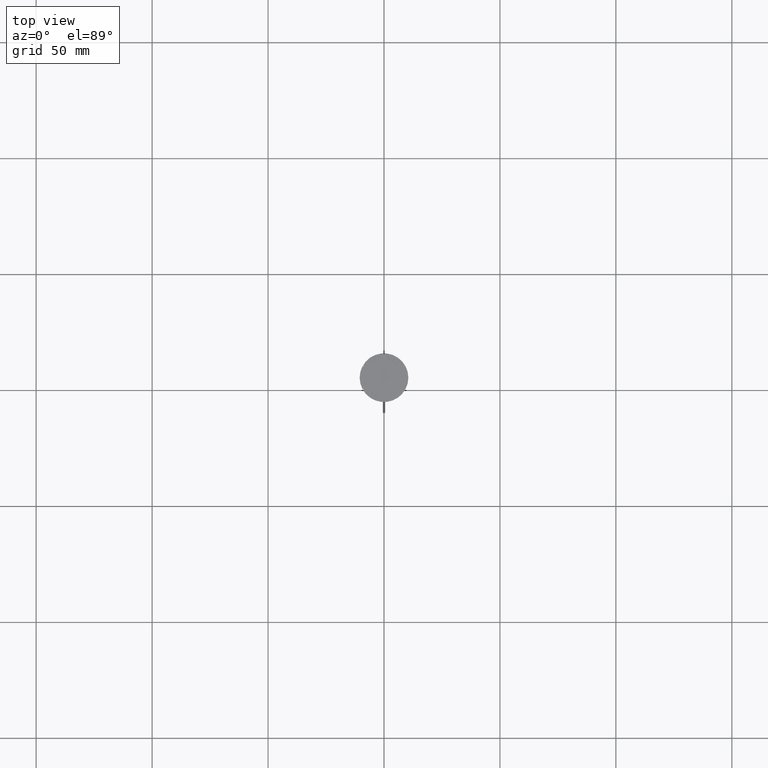
[diagram: clean part render]
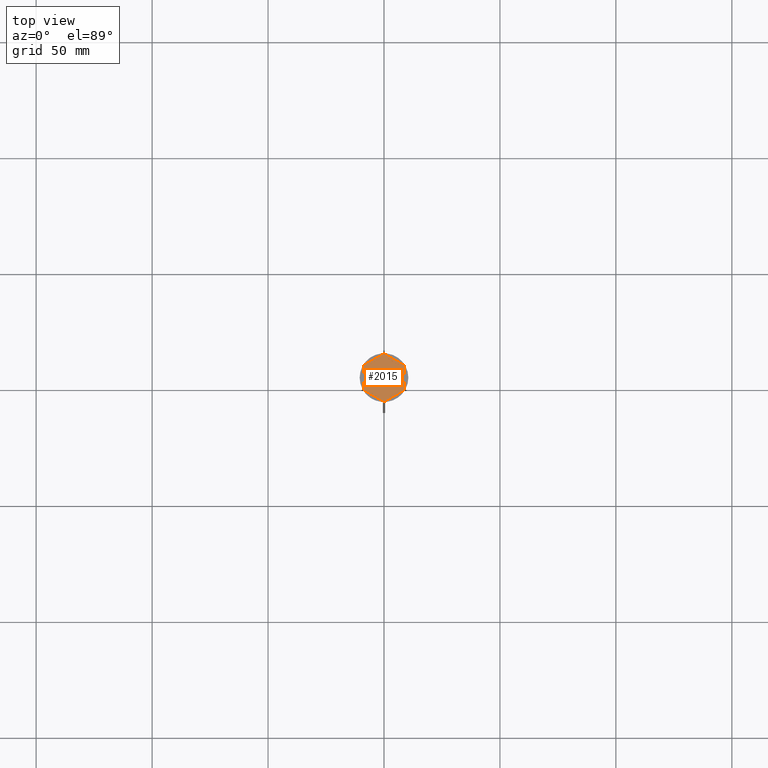
[diagram: same view with one face highlighted and labeled with its STEP entity id]
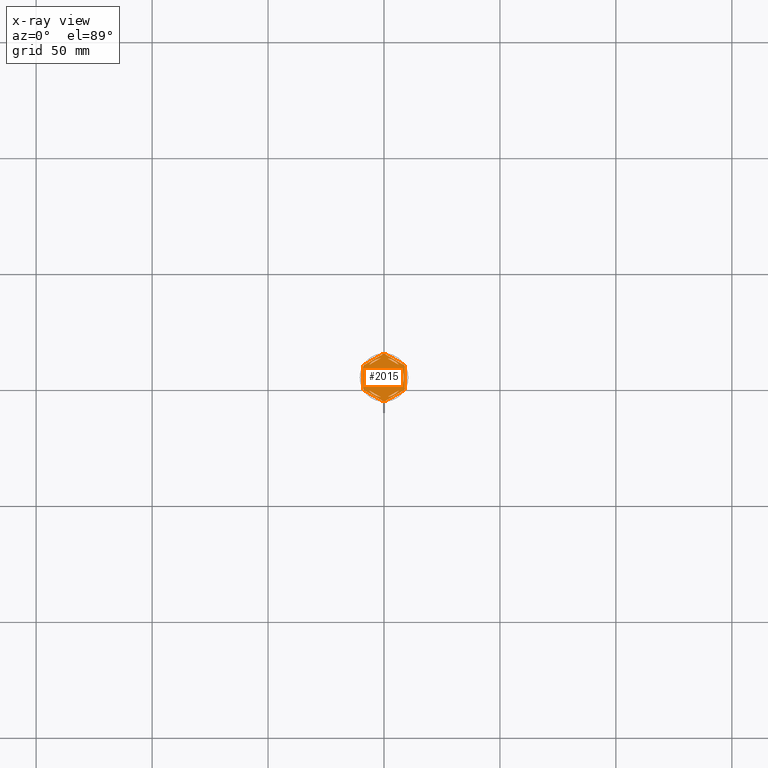
[diagram: x-ray of the same camera — body ghosted, the highlighted face saturated]
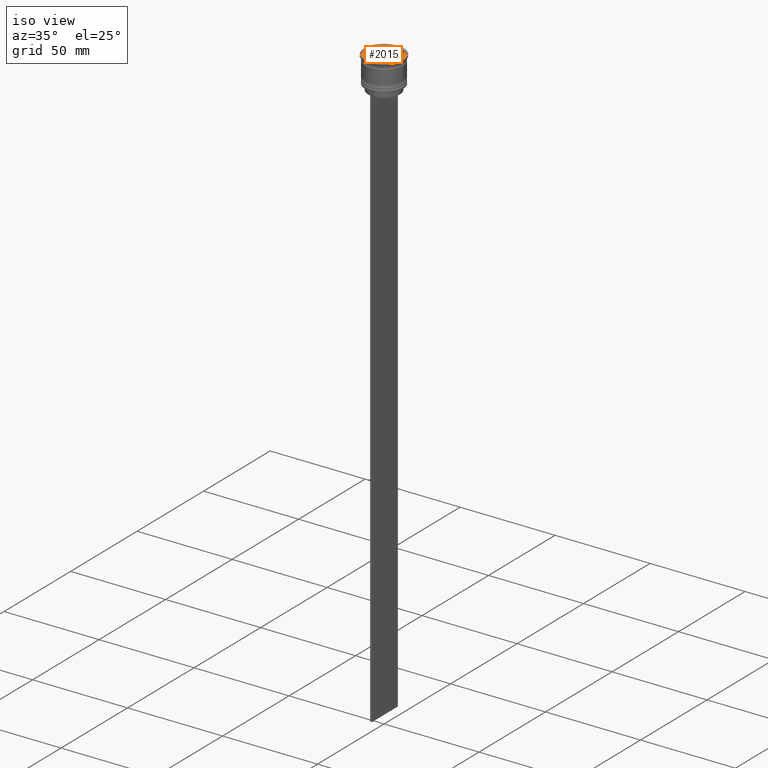
[diagram: same view with one face highlighted and labeled with its STEP entity id]
A machine part, top view. The second image highlights one B-rep face of the part: STEP entity #2015.
The next image is the same camera in x-ray: the body ghosted, the highlighted face saturated — about 0% of this face is hidden behind the body in this view.
A second angle (iso view) of the same face is appended — the face is thin or edge-on in the first view.
In plain terms, the highlighted planar face has unit normal (0, 0, 1).
Its self-contained STEP definition (entity closure, byte-faithful):
#14 = CARTESIAN_POINT ( 'NONE',  ( -1.512531407233448366, -8.364343891910017703, -1.000000000000000888 ) ) ;
#55 = EDGE_CURVE ( 'NONE', #1963, #1712, #1995, .T. ) ;
#57 = AXIS2_PLACEMENT_3D ( 'NONE', #260, #405, #415 ) ;
#65 = VERTEX_POINT ( 'NONE', #609 ) ;
#66 = CARTESIAN_POINT ( 'NONE',  ( 0.000000000000000000, 0.000000000000000000, -1.000000000000000000 ) ) ;
#80 = VERTEX_POINT ( 'NONE', #836 ) ;
#84 = CARTESIAN_POINT ( 'NONE',  ( 8.656921938165297092, 5.394228634059953897, -1.000000000000000000 ) ) ;
#87 = DIRECTION ( 'NONE',  ( 1.000000000000000000, 8.881784197001252323E-16, 0.000000000000000000 ) ) ;
#96 = DIRECTION ( 'NONE',  ( -0.8660254037844385966, 0.4999999999999999445, 0.000000000000000000 ) ) ;
#101 = CIRCLE ( 'NONE', #1263, 8.500000000000000000 ) ;
#103 = EDGE_LOOP ( 'NONE', ( #1173, #1193 ) ) ;
#133 = CARTESIAN_POINT ( 'NONE',  ( 0.000000000000000000, 0.000000000000000000, -1.000000000000000000 ) ) ;
#134 = CIRCLE ( 'NONE', #1461, 10.19999999999999574 ) ;
#151 = CARTESIAN_POINT ( 'NONE',  ( 6.487468592766552078, 5.492062568641001619, -1.000000000000000888 ) ) ;
#164 = EDGE_LOOP ( 'NONE', ( #1160, #2551 ) ) ;
#166 = VERTEX_POINT ( 'NONE', #277 ) ;
#172 = DIRECTION ( 'NONE',  ( 0.000000000000000000, 0.000000000000000000, 1.000000000000000000 ) ) ;
#177 = VECTOR ( 'NONE', #1108, 1000.000000000000000 ) ;
#200 = EDGE_CURVE ( 'NONE', #881, #2056, #1076, .T. ) ;
#211 = DIRECTION ( 'NONE',  ( 1.000000000000000000, 0.000000000000000000, 0.000000000000000000 ) ) ;
#214 = CARTESIAN_POINT ( 'NONE',  ( -8.673617379884035472E-16, -9.237604307034013473, -1.000000000000000888 ) ) ;
#218 = LINE ( 'NONE', #249, #2189 ) ;
#226 = ORIENTED_EDGE ( 'NONE', *, *, #531, .F. ) ;
#246 = CARTESIAN_POINT ( 'NONE',  ( -0.3430780618347059052, 10.19422863405994306, -1.000000000000000000 ) ) ;
#248 = CARTESIAN_POINT ( 'NONE',  ( 8.000000000000000000, 4.618802153517006737, -1.000000000000000888 ) ) ;
#249 = CARTESIAN_POINT ( 'NONE',  ( 8.673617379884035472E-16, 9.237604307034013473, -1.000000000000000888 ) ) ;
#250 = CIRCLE ( 'NONE', #2315, 10.19999999999999574 ) ;
#260 = CARTESIAN_POINT ( 'NONE',  ( 0.000000000000000000, 0.000000000000000000, -1.000000000000000000 ) ) ;
#269 = VECTOR ( 'NONE', #1272, 1000.000000000000000 ) ;
#273 = FACE_BOUND ( 'NONE', #1168, .T. ) ;
#277 = CARTESIAN_POINT ( 'NONE',  ( -8.500000000000000000, 0.000000000000000000, -1.000000000000000000 ) ) ;
#319 = CARTESIAN_POINT ( 'NONE',  ( 2.607697573705103160E-15, -10.39230484541326405, -1.000000000000000000 ) ) ;
#320 = EDGE_LOOP ( 'NONE', ( #2320, #1929, #1031, #712, #421, #1575, #1579, #1033, #1496, #2574, #1687, #1178 ) ) ;
#324 = FACE_BOUND ( 'NONE', #1828, .T. ) ;
#347 = DIRECTION ( 'NONE',  ( 1.000000000000000000, 0.000000000000000000, 0.000000000000000000 ) ) ;
#360 = FACE_BOUND ( 'NONE', #164, .T. ) ;
#361 = EDGE_CURVE ( 'NONE', #704, #1621, #2109, .T. ) ;
#363 = CARTESIAN_POINT ( 'NONE',  ( 0.000000000000000000, 0.000000000000000000, -1.000000000000000000 ) ) ;
#397 = CARTESIAN_POINT ( 'NONE',  ( -9.000000000000001776, -4.799999999999988276, -1.000000000000000000 ) ) ;
#405 = DIRECTION ( 'NONE',  ( 0.000000000000000000, 0.000000000000000000, 1.000000000000000000 ) ) ;
#415 = DIRECTION ( 'NONE',  ( 1.000000000000000000, 0.000000000000000000, 0.000000000000000000 ) ) ;
#421 = ORIENTED_EDGE ( 'NONE', *, *, #1092, .T. ) ;
#427 = DIRECTION ( 'NONE',  ( 1.000000000000000000, 0.000000000000000000, 0.000000000000000000 ) ) ;
#441 = LINE ( 'NONE', #2202, #2156 ) ;
#472 = VERTEX_POINT ( 'NONE', #983 ) ;
#478 = CARTESIAN_POINT ( 'NONE',  ( 8.656921938165297092, -5.394228634059953009, -1.000000000000000000 ) ) ;
#480 = CARTESIAN_POINT ( 'NONE',  ( -8.000000000000000000, 4.618802153517004072, -1.000000000000000888 ) ) ;
#482 = VECTOR ( 'NONE', #1368, 1000.000000000000227 ) ;
#505 = LINE ( 'NONE', #319, #177 ) ;
#510 = VECTOR ( 'NONE', #1036, 1000.000000000000114 ) ;
#524 = VERTEX_POINT ( 'NONE', #811 ) ;
#525 = DIRECTION ( 'NONE',  ( -0.000000000000000000, -0.000000000000000000, -1.000000000000000000 ) ) ;
#531 = EDGE_CURVE ( 'NONE', #1712, #1963, #1765, .T. ) ;
#533 = CARTESIAN_POINT ( 'NONE',  ( 8.000000000000000000, 2.872281323269014752, -1.000000000000000888 ) ) ;
#536 = DIRECTION ( 'NONE',  ( 1.000000000000000000, 0.000000000000000000, 0.000000000000000000 ) ) ;
#545 = LINE ( 'NONE', #1833, #2519 ) ;
#566 = EDGE_CURVE ( 'NONE', #524, #1560, #1617, .T. ) ;
#569 = EDGE_CURVE ( 'NONE', #1560, #524, #1063, .T. ) ;
#585 = CARTESIAN_POINT ( 'NONE',  ( -0.3430780618347024080, -10.19422863405994306, -1.000000000000000000 ) ) ;
#609 = CARTESIAN_POINT ( 'NONE',  ( 9.000000000000001776, 4.799999999999988276, -1.000000000000000000 ) ) ;
#628 = DIRECTION ( 'NONE',  ( 1.000000000000000000, 0.000000000000000000, 0.000000000000000000 ) ) ;
#643 = VERTEX_POINT ( 'NONE', #1457 ) ;
#647 = EDGE_CURVE ( 'NONE', #1738, #643, #545, .T. ) ;
#661 = LINE ( 'NONE', #2049, #2398 ) ;
#672 = CARTESIAN_POINT ( 'NONE',  ( 9.000000000000001776, -5.196152422706632024, -1.000000000000000000 ) ) ;
#683 = CARTESIAN_POINT ( 'NONE',  ( 1.512531407233448366, 8.364343891910017703, -1.000000000000000888 ) ) ;
#684 = AXIS2_PLACEMENT_3D ( 'NONE', #1728, #1121, #948 ) ;
#700 = DIRECTION ( 'NONE',  ( -0.000000000000000000, -0.000000000000000000, -1.000000000000000000 ) ) ;
#704 = VERTEX_POINT ( 'NONE', #84 ) ;
#712 = ORIENTED_EDGE ( 'NONE', *, *, #1137, .F. ) ;
#720 = CIRCLE ( 'NONE', #57, 8.500000000000000000 ) ;
#791 = VERTEX_POINT ( 'NONE', #2540 ) ;
#792 = CARTESIAN_POINT ( 'NONE',  ( -8.000000000000000000, -2.872281323269016085, -1.000000000000000888 ) ) ;
#793 = VERTEX_POINT ( 'NONE', #397 ) ;
#799 = CARTESIAN_POINT ( 'NONE',  ( -6.487468592766553854, 5.492062568640999842, -1.000000000000000888 ) ) ;
#811 = CARTESIAN_POINT ( 'NONE',  ( 6.487468592766547637, -5.492062568641006060, -1.000000000000000888 ) ) ;
#836 = CARTESIAN_POINT ( 'NONE',  ( 8.000000000000000000, -2.872281323269017417, -1.000000000000000888 ) ) ;
#837 = DIRECTION ( 'NONE',  ( -1.877893248421449036E-16, -1.000000000000000000, 0.000000000000000000 ) ) ;
#855 = DIRECTION ( 'NONE',  ( -0.000000000000000000, -0.000000000000000000, -1.000000000000000000 ) ) ;
#862 = VERTEX_POINT ( 'NONE', #1352 ) ;
#879 = LINE ( 'NONE', #1673, #1875 ) ;
#881 = VERTEX_POINT ( 'NONE', #792 ) ;
#902 = CARTESIAN_POINT ( 'NONE',  ( 0.000000000000000000, 0.000000000000000000, -1.000000000000000000 ) ) ;
#921 = PLANE ( 'NONE',  #1675 ) ;
#942 = EDGE_LOOP ( 'NONE', ( #1354, #1120 ) ) ;
#948 = DIRECTION ( 'NONE',  ( 1.000000000000000000, 0.000000000000000000, 0.000000000000000000 ) ) ;
#970 = CIRCLE ( 'NONE', #2426, 10.19999999999999574 ) ;
#981 = DIRECTION ( 'NONE',  ( 1.000000000000000000, 0.000000000000000000, -0.000000000000000000 ) ) ;
#983 = CARTESIAN_POINT ( 'NONE',  ( 9.000000000000001776, -4.799999999999988276, -1.000000000000000000 ) ) ;
#991 = CARTESIAN_POINT ( 'NONE',  ( -9.000000000000001776, 4.799999999999988276, -1.000000000000000000 ) ) ;
#995 = EDGE_CURVE ( 'NONE', #1480, #793, #134, .T. ) ;
#1031 = ORIENTED_EDGE ( 'NONE', *, *, #361, .T. ) ;
#1033 = ORIENTED_EDGE ( 'NONE', *, *, #995, .F. ) ;
#1036 = DIRECTION ( 'NONE',  ( 0.8660254037844385966, -0.4999999999999999445, 0.000000000000000000 ) ) ;
#1045 = DIRECTION ( 'NONE',  ( 0.8660254037844387076, -0.4999999999999997224, 0.000000000000000000 ) ) ;
#1063 = CIRCLE ( 'NONE', #1144, 8.500000000000000000 ) ;
#1076 = LINE ( 'NONE', #480, #269 ) ;
#1092 = EDGE_CURVE ( 'NONE', #1791, #1334, #879, .T. ) ;
#1102 = CIRCLE ( 'NONE', #684, 10.19999999999999574 ) ;
#1108 = DIRECTION ( 'NONE',  ( 0.8660254037844385966, 0.5000000000000001110, 0.000000000000000000 ) ) ;
#1120 = ORIENTED_EDGE ( 'NONE', *, *, #1373, .F. ) ;
#1121 = DIRECTION ( 'NONE',  ( -0.000000000000000000, -0.000000000000000000, -1.000000000000000000 ) ) ;
#1137 = EDGE_CURVE ( 'NONE', #1791, #1621, #1419, .T. ) ;
#1141 = EDGE_CURVE ( 'NONE', #862, #1905, #505, .T. ) ;
#1144 = AXIS2_PLACEMENT_3D ( 'NONE', #1230, #2201, #427 ) ;
#1160 = ORIENTED_EDGE ( 'NONE', *, *, #1785, .F. ) ;
#1168 = EDGE_LOOP ( 'NONE', ( #2171, #2475 ) ) ;
#1173 = ORIENTED_EDGE ( 'NONE', *, *, #569, .F. ) ;
#1175 = FACE_OUTER_BOUND ( 'NONE', #320, .T. ) ;
#1178 = ORIENTED_EDGE ( 'NONE', *, *, #1452, .F. ) ;
#1191 = DIRECTION ( 'NONE',  ( 0.000000000000000000, 0.000000000000000000, 1.000000000000000000 ) ) ;
#1193 = ORIENTED_EDGE ( 'NONE', *, *, #566, .F. ) ;
#1207 = CARTESIAN_POINT ( 'NONE',  ( -8.656921938165297092, 5.394228634059953009, -1.000000000000000000 ) ) ;
#1219 = DIRECTION ( 'NONE',  ( -0.000000000000000000, -0.000000000000000000, -1.000000000000000000 ) ) ;
#1230 = CARTESIAN_POINT ( 'NONE',  ( 0.000000000000000000, 0.000000000000000000, -1.000000000000000000 ) ) ;
#1246 = EDGE_CURVE ( 'NONE', #2528, #793, #2168, .T. ) ;
#1263 = AXIS2_PLACEMENT_3D ( 'NONE', #2108, #1519, #536 ) ;
#1265 = AXIS2_PLACEMENT_3D ( 'NONE', #2199, #2408, #628 ) ;
#1272 = DIRECTION ( 'NONE',  ( 0.000000000000000000, 1.000000000000000000, 0.000000000000000000 ) ) ;
#1297 = AXIS2_PLACEMENT_3D ( 'NONE', #2499, #700, #2284 ) ;
#1312 = DIRECTION ( 'NONE',  ( -0.8660254037844385966, -0.5000000000000001110, 0.000000000000000000 ) ) ;
#1317 = EDGE_CURVE ( 'NONE', #2528, #1334, #2532, .T. ) ;
#1320 = CARTESIAN_POINT ( 'NONE',  ( 9.000000000000001776, 5.196152422706632912, -1.000000000000000000 ) ) ;
#1334 = VERTEX_POINT ( 'NONE', #1207 ) ;
#1339 = VERTEX_POINT ( 'NONE', #799 ) ;
#1341 = CARTESIAN_POINT ( 'NONE',  ( -8.000000000000000000, 2.872281323269016085, -1.000000000000000888 ) ) ;
#1352 = CARTESIAN_POINT ( 'NONE',  ( 0.3430780618347059052, -10.19422863405994306, -1.000000000000000000 ) ) ;
#1354 = ORIENTED_EDGE ( 'NONE', *, *, #2233, .F. ) ;
#1368 = DIRECTION ( 'NONE',  ( -0.8660254037844385966, 0.5000000000000000000, 0.000000000000000000 ) ) ;
#1373 = EDGE_CURVE ( 'NONE', #1339, #791, #218, .T. ) ;
#1400 = DIRECTION ( 'NONE',  ( 0.8660254037844384856, 0.5000000000000003331, -0.000000000000000000 ) ) ;
#1408 = DIRECTION ( 'NONE',  ( -0.8660254037844387076, -0.4999999999999998335, 0.000000000000000000 ) ) ;
#1419 = CIRCLE ( 'NONE', #1297, 10.19999999999999574 ) ;
#1421 = EDGE_CURVE ( 'NONE', #2432, #80, #661, .T. ) ;
#1425 = CARTESIAN_POINT ( 'NONE',  ( 0.000000000000000000, 0.000000000000000000, -1.000000000000000000 ) ) ;
#1429 = CIRCLE ( 'NONE', #1265, 8.500000000000000000 ) ;
#1432 = VECTOR ( 'NONE', #1408, 1000.000000000000114 ) ;
#1452 = EDGE_CURVE ( 'NONE', #472, #1905, #250, .T. ) ;
#1457 = CARTESIAN_POINT ( 'NONE',  ( -6.487468592766552078, -5.492062568641001619, -1.000000000000000888 ) ) ;
#1460 = DIRECTION ( 'NONE',  ( 0.000000000000000000, 1.000000000000000000, 0.000000000000000000 ) ) ;
#1461 = AXIS2_PLACEMENT_3D ( 'NONE', #66, #855, #1651 ) ;
#1472 = AXIS2_PLACEMENT_3D ( 'NONE', #1592, #1191, #1980 ) ;
#1480 = VERTEX_POINT ( 'NONE', #2065 ) ;
#1486 = AXIS2_PLACEMENT_3D ( 'NONE', #363, #2121, #347 ) ;
#1496 = ORIENTED_EDGE ( 'NONE', *, *, #1737, .T. ) ;
#1505 = CARTESIAN_POINT ( 'NONE',  ( 0.000000000000000000, 0.000000000000000000, -1.000000000000000000 ) ) ;
#1519 = DIRECTION ( 'NONE',  ( 0.000000000000000000, 0.000000000000000000, 1.000000000000000000 ) ) ;
#1536 = ORIENTED_EDGE ( 'NONE', *, *, #55, .F. ) ;
#1537 = ORIENTED_EDGE ( 'NONE', *, *, #1676, .F. ) ;
#1546 = FACE_BOUND ( 'NONE', #2396, .T. ) ;
#1560 = VERTEX_POINT ( 'NONE', #2100 ) ;
#1575 = ORIENTED_EDGE ( 'NONE', *, *, #1317, .F. ) ;
#1578 = EDGE_CURVE ( 'NONE', #472, #65, #2110, .T. ) ;
#1579 = ORIENTED_EDGE ( 'NONE', *, *, #1246, .T. ) ;
#1592 = CARTESIAN_POINT ( 'NONE',  ( 0.000000000000000000, 0.000000000000000000, -1.000000000000000000 ) ) ;
#1615 = CIRCLE ( 'NONE', #1486, 8.500000000000000000 ) ;
#1617 = LINE ( 'NONE', #214, #1432 ) ;
#1621 = VERTEX_POINT ( 'NONE', #2562 ) ;
#1651 = DIRECTION ( 'NONE',  ( 1.000000000000000000, 0.000000000000000000, 0.000000000000000000 ) ) ;
#1673 = CARTESIAN_POINT ( 'NONE',  ( 0.000000000000000000, 10.39230484541326582, -1.000000000000000000 ) ) ;
#1675 = AXIS2_PLACEMENT_3D ( 'NONE', #1505, #1964, #981 ) ;
#1676 = EDGE_CURVE ( 'NONE', #166, #881, #1615, .T. ) ;
#1687 = ORIENTED_EDGE ( 'NONE', *, *, #1141, .T. ) ;
#1712 = VERTEX_POINT ( 'NONE', #151 ) ;
#1728 = CARTESIAN_POINT ( 'NONE',  ( 0.000000000000000000, 0.000000000000000000, -1.000000000000000000 ) ) ;
#1736 = VECTOR ( 'NONE', #1460, 1000.000000000000000 ) ;
#1737 = EDGE_CURVE ( 'NONE', #1480, #2176, #441, .T. ) ;
#1738 = VERTEX_POINT ( 'NONE', #14 ) ;
#1741 = ORIENTED_EDGE ( 'NONE', *, *, #200, .F. ) ;
#1765 = CIRCLE ( 'NONE', #1472, 8.500000000000000000 ) ;
#1785 = EDGE_CURVE ( 'NONE', #643, #1738, #720, .T. ) ;
#1791 = VERTEX_POINT ( 'NONE', #246 ) ;
#1812 = DIRECTION ( 'NONE',  ( 1.000000000000000000, 0.000000000000000000, 0.000000000000000000 ) ) ;
#1828 = EDGE_LOOP ( 'NONE', ( #226, #1536 ) ) ;
#1833 = CARTESIAN_POINT ( 'NONE',  ( -8.000000000000000000, -4.618802153517006737, -1.000000000000000888 ) ) ;
#1850 = FACE_BOUND ( 'NONE', #103, .T. ) ;
#1875 = VECTOR ( 'NONE', #1312, 1000.000000000000000 ) ;
#1877 = DIRECTION ( 'NONE',  ( -0.000000000000000000, -0.000000000000000000, -1.000000000000000000 ) ) ;
#1905 = VERTEX_POINT ( 'NONE', #478 ) ;
#1929 = ORIENTED_EDGE ( 'NONE', *, *, #2395, .F. ) ;
#1934 = AXIS2_PLACEMENT_3D ( 'NONE', #1425, #1219, #1812 ) ;
#1936 = FACE_BOUND ( 'NONE', #942, .T. ) ;
#1948 = CARTESIAN_POINT ( 'NONE',  ( 0.000000000000000000, 0.000000000000000000, -1.000000000000000000 ) ) ;
#1963 = VERTEX_POINT ( 'NONE', #683 ) ;
#1964 = DIRECTION ( 'NONE',  ( 0.000000000000000000, 0.000000000000000000, 1.000000000000000000 ) ) ;
#1980 = DIRECTION ( 'NONE',  ( 1.000000000000000000, 0.000000000000000000, 0.000000000000000000 ) ) ;
#1995 = LINE ( 'NONE', #248, #510 ) ;
#2015 = ADVANCED_FACE ( 'NONE', ( #324, #273, #1850, #360, #1546, #1936, #1175 ), #921, .T. ) ;
#2041 = VECTOR ( 'NONE', #2566, 1000.000000000000000 ) ;
#2049 = CARTESIAN_POINT ( 'NONE',  ( 7.999999999999998224, -4.618802153517008513, -1.000000000000000888 ) ) ;
#2056 = VERTEX_POINT ( 'NONE', #1341 ) ;
#2061 = EDGE_CURVE ( 'NONE', #862, #2176, #970, .T. ) ;
#2065 = CARTESIAN_POINT ( 'NONE',  ( -8.656921938165295316, -5.394228634059957450, -1.000000000000000000 ) ) ;
#2093 = EDGE_CURVE ( 'NONE', #80, #2432, #101, .T. ) ;
#2100 = CARTESIAN_POINT ( 'NONE',  ( 1.512531407233452363, -8.364343891910017703, -1.000000000000000888 ) ) ;
#2108 = CARTESIAN_POINT ( 'NONE',  ( 0.000000000000000000, 0.000000000000000000, -1.000000000000000000 ) ) ;
#2109 = LINE ( 'NONE', #1320, #482 ) ;
#2110 = LINE ( 'NONE', #672, #1736 ) ;
#2121 = DIRECTION ( 'NONE',  ( 0.000000000000000000, 0.000000000000000000, 1.000000000000000000 ) ) ;
#2131 = ORIENTED_EDGE ( 'NONE', *, *, #2513, .F. ) ;
#2156 = VECTOR ( 'NONE', #1045, 1000.000000000000114 ) ;
#2168 = LINE ( 'NONE', #2575, #2041 ) ;
#2171 = ORIENTED_EDGE ( 'NONE', *, *, #2093, .F. ) ;
#2176 = VERTEX_POINT ( 'NONE', #585 ) ;
#2189 = VECTOR ( 'NONE', #1400, 1000.000000000000114 ) ;
#2199 = CARTESIAN_POINT ( 'NONE',  ( 0.000000000000000000, 0.000000000000000000, -1.000000000000000000 ) ) ;
#2201 = DIRECTION ( 'NONE',  ( 0.000000000000000000, 0.000000000000000000, 1.000000000000000000 ) ) ;
#2202 = CARTESIAN_POINT ( 'NONE',  ( -9.000000000000001776, -5.196152422706632912, -1.000000000000000000 ) ) ;
#2233 = EDGE_CURVE ( 'NONE', #791, #1339, #1429, .T. ) ;
#2261 = CIRCLE ( 'NONE', #2431, 8.500000000000000000 ) ;
#2284 = DIRECTION ( 'NONE',  ( 1.000000000000000000, 1.598721155460225418E-14, 0.000000000000000000 ) ) ;
#2314 = DIRECTION ( 'NONE',  ( 1.000000000000000000, 0.000000000000000000, 0.000000000000000000 ) ) ;
#2315 = AXIS2_PLACEMENT_3D ( 'NONE', #902, #1877, #87 ) ;
#2320 = ORIENTED_EDGE ( 'NONE', *, *, #1578, .T. ) ;
#2395 = EDGE_CURVE ( 'NONE', #704, #65, #1102, .T. ) ;
#2396 = EDGE_LOOP ( 'NONE', ( #2131, #1741, #1537 ) ) ;
#2398 = VECTOR ( 'NONE', #837, 1000.000000000000000 ) ;
#2408 = DIRECTION ( 'NONE',  ( 0.000000000000000000, 0.000000000000000000, 1.000000000000000000 ) ) ;
#2426 = AXIS2_PLACEMENT_3D ( 'NONE', #133, #525, #2314 ) ;
#2431 = AXIS2_PLACEMENT_3D ( 'NONE', #1948, #172, #211 ) ;
#2432 = VERTEX_POINT ( 'NONE', #533 ) ;
#2475 = ORIENTED_EDGE ( 'NONE', *, *, #1421, .F. ) ;
#2499 = CARTESIAN_POINT ( 'NONE',  ( 0.000000000000000000, 0.000000000000000000, -1.000000000000000000 ) ) ;
#2513 = EDGE_CURVE ( 'NONE', #2056, #166, #2261, .T. ) ;
#2519 = VECTOR ( 'NONE', #96, 1000.000000000000114 ) ;
#2528 = VERTEX_POINT ( 'NONE', #991 ) ;
#2532 = CIRCLE ( 'NONE', #1934, 10.19999999999999574 ) ;
#2540 = CARTESIAN_POINT ( 'NONE',  ( -1.512531407233451475, 8.364343891910017703, -1.000000000000000888 ) ) ;
#2551 = ORIENTED_EDGE ( 'NONE', *, *, #647, .F. ) ;
#2562 = CARTESIAN_POINT ( 'NONE',  ( 0.3430780618347050170, 10.19422863405994306, -1.000000000000000000 ) ) ;
#2566 = DIRECTION ( 'NONE',  ( 0.000000000000000000, -1.000000000000000000, 0.000000000000000000 ) ) ;
#2574 = ORIENTED_EDGE ( 'NONE', *, *, #2061, .F. ) ;
#2575 = CARTESIAN_POINT ( 'NONE',  ( -9.000000000000001776, 5.196152422706632024, -1.000000000000000000 ) ) ;